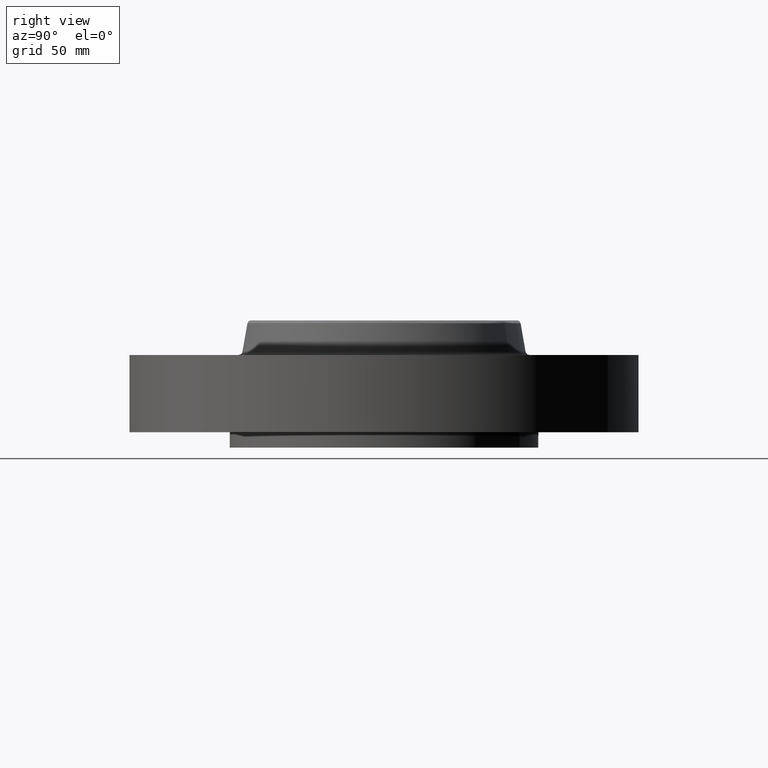
[diagram: clean part render]
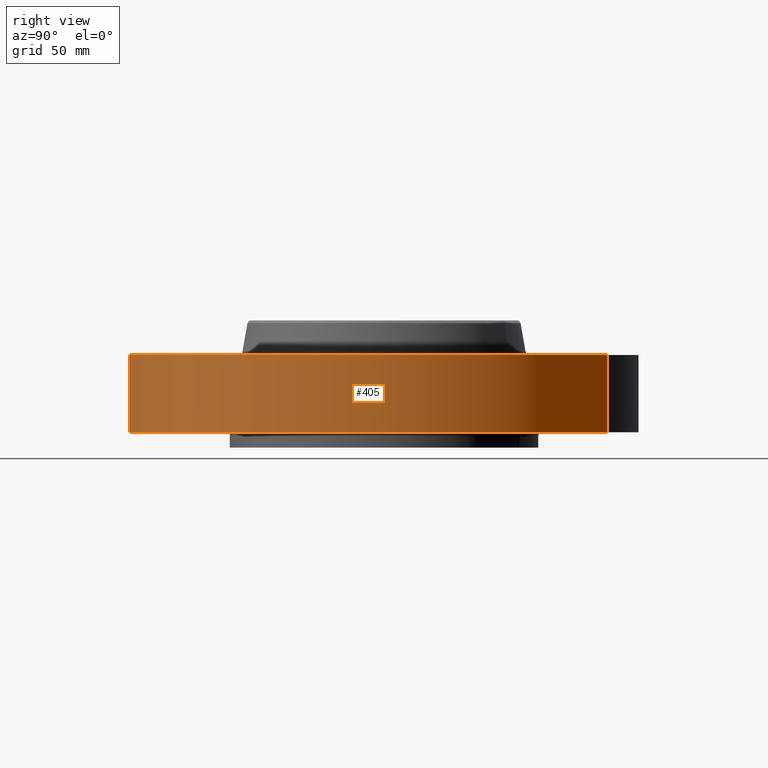
[diagram: same view with one face highlighted and labeled with its STEP entity id]
A machine part, right view. The second image highlights one B-rep face of the part: STEP entity #405.
In plain terms, the highlighted cylindrical surface (partial cylindrical patch) has radius 104.775 mm, axis along (0, 0, -1).
Its self-contained STEP definition (entity closure, byte-faithful):
#207=AXIS2_PLACEMENT_3D('Circle Axis2P3D',#205,#206,$) ;
#366=AXIS2_PLACEMENT_3D('Cylinder Axis2P3D',#363,#364,#365) ;
#396=AXIS2_PLACEMENT_3D('Circle Axis2P3D',#394,#395,$) ;
#200=CARTESIAN_POINT('Vertex',(-1.97763034675,-3.62002806781,6.99353086378E-016)) ;
#202=CARTESIAN_POINT('Vertex',(1.97763034675,3.62002806781,6.99353086378E-016)) ;
#205=CARTESIAN_POINT('Axis2P3D Location',(0.,0.,0.)) ;
#363=CARTESIAN_POINT('Axis2P3D Location',(0.,0.,0.780000000003)) ;
#368=CARTESIAN_POINT('Line Origine',(-1.97763034675,-3.62002806781,0.625000000003)) ;
#372=CARTESIAN_POINT('Vertex',(-1.97763034675,-3.62002806781,1.25000000001)) ;
#379=CARTESIAN_POINT('Vertex',(1.97763034675,3.62002806781,1.25000000001)) ;
#382=CARTESIAN_POINT('Line Origine',(1.97763034675,3.62002806781,0.625000000003)) ;
#394=CARTESIAN_POINT('Axis2P3D Location',(0.,0.,1.25000000001)) ;
#206=DIRECTION('Axis2P3D Direction',(0.,0.,-0.0393700787402)) ;
#364=DIRECTION('Axis2P3D Direction',(0.,0.,-0.0393700787402)) ;
#365=DIRECTION('Axis2P3D XDirection',(0.0188750212049,0.0345504945626,0.)) ;
#369=DIRECTION('Vector Direction',(0.,0.,-0.0393700787402)) ;
#383=DIRECTION('Vector Direction',(0.,0.,-0.0393700787402)) ;
#395=DIRECTION('Axis2P3D Direction',(0.,0.,-0.0393700787402)) ;
#370=VECTOR('Line Direction',#369,0.0393700787402) ;
#384=VECTOR('Line Direction',#383,0.0393700787402) ;
#400=ORIENTED_EDGE('',*,*,#209,.F.) ;
#401=ORIENTED_EDGE('',*,*,#386,.T.) ;
#402=ORIENTED_EDGE('',*,*,#398,.T.) ;
#403=ORIENTED_EDGE('',*,*,#374,.F.) ;
#405=ADVANCED_FACE('PartBody',(#404),#367,.T.) ;
#208=CIRCLE('generated circle',#207,4.12500000002) ;
#397=CIRCLE('generated circle',#396,4.12500000002) ;
#367=CYLINDRICAL_SURFACE('generated cylinder',#366,4.12500000002) ;
#209=EDGE_CURVE('',#203,#201,#208,.T.) ;
#374=EDGE_CURVE('',#201,#373,#371,.F.) ;
#386=EDGE_CURVE('',#203,#380,#385,.F.) ;
#398=EDGE_CURVE('',#380,#373,#397,.T.) ;
#399=EDGE_LOOP('',(#400,#401,#402,#403)) ;
#404=FACE_OUTER_BOUND('',#399,.T.) ;
#371=LINE('Line',#368,#370) ;
#385=LINE('Line',#382,#384) ;
#201=VERTEX_POINT('',#200) ;
#203=VERTEX_POINT('',#202) ;
#373=VERTEX_POINT('',#372) ;
#380=VERTEX_POINT('',#379) ;